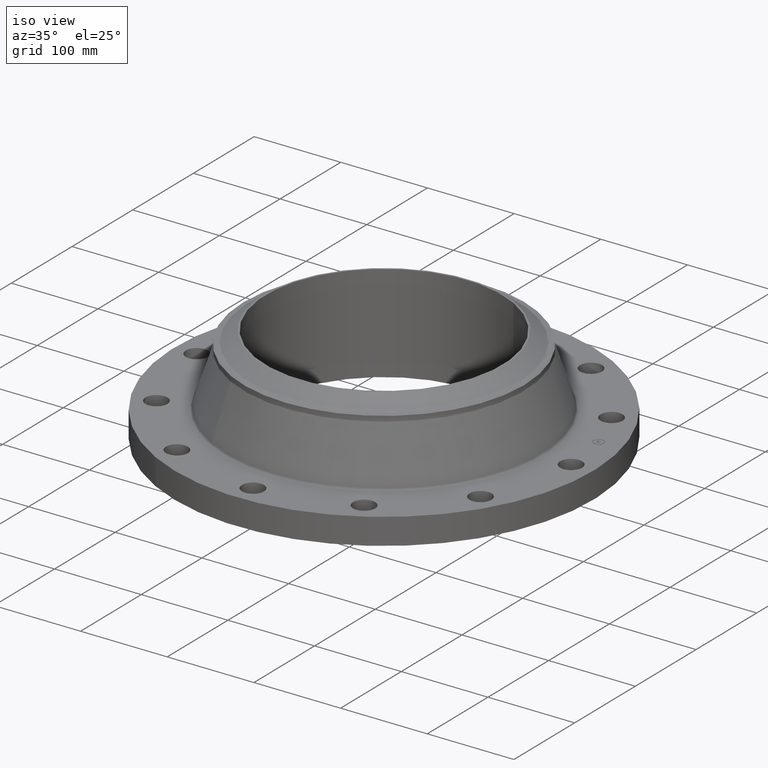
[diagram: clean part render]
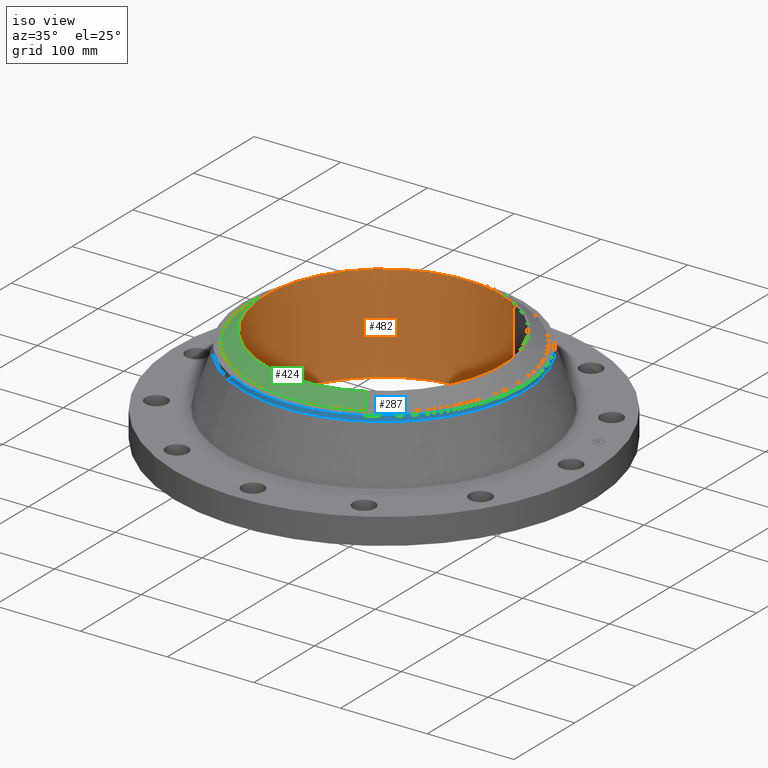
[diagram: same view with three faces highlighted in distinct colors, each labeled with its STEP entity id]
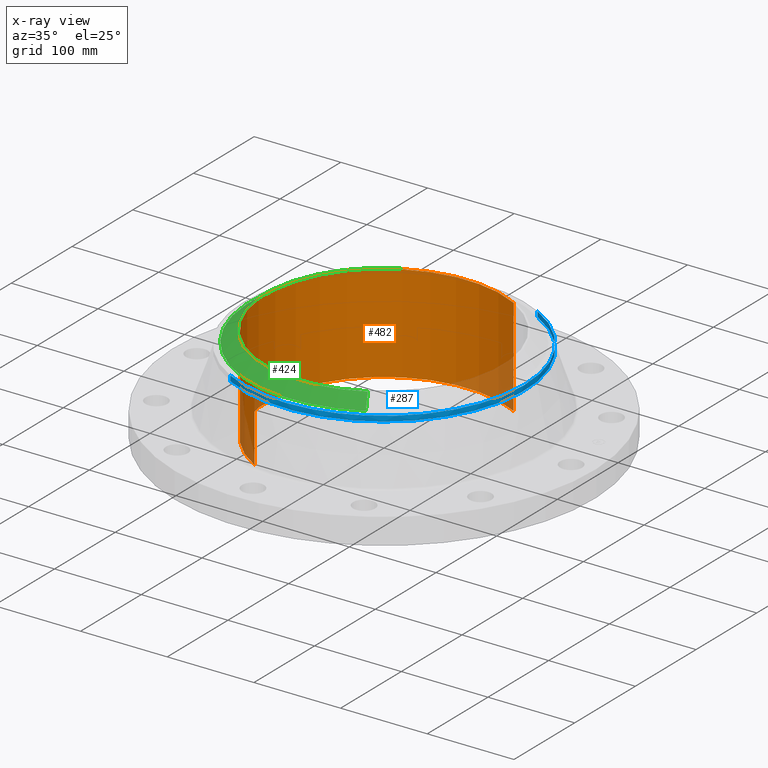
[diagram: x-ray of the same camera — body ghosted, the three highlighted faces saturated]
A machine part, iso view with three faces highlighted in distinct colors.
The next image is the same camera in x-ray (body ghosted, the three faces saturated) — at least one of them is partly hidden behind the body in this view.
Their STEP definitions:

[orange] entity #482 — the highlighted cylindrical surface (partial cylindrical patch) has radius 136.525 mm, axis along (0, 0, -1).
#396=AXIS2_PLACEMENT_3D('Circle Axis2P3D',#394,#395,$) ;
#455=AXIS2_PLACEMENT_3D('Cylinder Axis2P3D',#452,#453,#454) ;
#466=AXIS2_PLACEMENT_3D('Circle Axis2P3D',#464,#465,$) ;
#394=CARTESIAN_POINT('Axis2P3D Location',(0.,0.,4.44000000002)) ;
#398=CARTESIAN_POINT('Vertex',(-2.57691227001,-4.71700627018,4.44000000002)) ;
#400=CARTESIAN_POINT('Vertex',(2.57691227001,4.71700627018,4.44000000002)) ;
#452=CARTESIAN_POINT('Axis2P3D Location',(0.,0.,2.22000000001)) ;
#457=CARTESIAN_POINT('Line Origine',(-2.57691227001,-4.71700627018,2.22000000001)) ;
#461=CARTESIAN_POINT('Vertex',(-2.57691227001,-4.71700627018,-2.96525708624E-014)) ;
#464=CARTESIAN_POINT('Axis2P3D Location',(0.,0.,-2.96525708624E-014)) ;
#468=CARTESIAN_POINT('Vertex',(2.57691227001,4.71700627018,-2.96525708624E-014)) ;
#471=CARTESIAN_POINT('Line Origine',(2.57691227001,4.71700627018,2.22000000001)) ;
#395=DIRECTION('Axis2P3D Direction',(0.,0.,-0.0393700787402)) ;
#453=DIRECTION('Axis2P3D Direction',(0.,0.,-0.0393700787402)) ;
#454=DIRECTION('Axis2P3D XDirection',(0.0188750212049,0.0345504945626,0.)) ;
#458=DIRECTION('Vector Direction',(0.,0.,-0.0393700787402)) ;
#465=DIRECTION('Axis2P3D Direction',(0.,0.,-0.0393700787402)) ;
#472=DIRECTION('Vector Direction',(0.,0.,-0.0393700787402)) ;
#459=VECTOR('Line Direction',#458,0.0393700787402) ;
#473=VECTOR('Line Direction',#472,0.0393700787402) ;
#477=ORIENTED_EDGE('',*,*,#402,.F.) ;
#478=ORIENTED_EDGE('',*,*,#463,.T.) ;
#479=ORIENTED_EDGE('',*,*,#470,.T.) ;
#480=ORIENTED_EDGE('',*,*,#475,.F.) ;
#482=ADVANCED_FACE('PartBody',(#481),#456,.F.) ;
#397=CIRCLE('generated circle',#396,5.37500000002) ;
#467=CIRCLE('generated circle',#466,5.37500000002) ;
#456=CYLINDRICAL_SURFACE('generated cylinder',#455,5.37500000002) ;
#402=EDGE_CURVE('',#399,#401,#397,.T.) ;
#463=EDGE_CURVE('',#399,#462,#460,.T.) ;
#470=EDGE_CURVE('',#462,#469,#467,.T.) ;
#475=EDGE_CURVE('',#401,#469,#474,.T.) ;
#476=EDGE_LOOP('',(#477,#478,#479,#480)) ;
#481=FACE_OUTER_BOUND('',#476,.T.) ;
#460=LINE('Line',#457,#459) ;
#474=LINE('Line',#471,#473) ;
#399=VERTEX_POINT('',#398) ;
#401=VERTEX_POINT('',#400) ;
#462=VERTEX_POINT('',#461) ;
#469=VERTEX_POINT('',#468) ;

[blue] entity #287 — the highlighted cylindrical surface (partial cylindrical patch) has radius 161.925 mm, axis along (0, 0, -1).
#220=AXIS2_PLACEMENT_3D('Circle Axis2P3D',#218,#219,$) ;
#252=AXIS2_PLACEMENT_3D('Cylinder Axis2P3D',#249,#250,#251) ;
#270=AXIS2_PLACEMENT_3D('Circle Axis2P3D',#268,#269,$) ;
#277=AXIS2_PLACEMENT_3D('Circle Axis2P3D',#275,#276,$) ;
#215=CARTESIAN_POINT('Vertex',(3.05633780861,5.59458883207,3.64578537513)) ;
#218=CARTESIAN_POINT('Axis2P3D Location',(0.,0.,3.64578537513)) ;
#222=CARTESIAN_POINT('Vertex',(-3.05633780861,-5.59458883207,3.64578537513)) ;
#249=CARTESIAN_POINT('Axis2P3D Location',(0.,0.,2.22000000001)) ;
#254=CARTESIAN_POINT('Line Origine',(-3.05633780861,-5.59458883207,3.76389561135)) ;
#258=CARTESIAN_POINT('Vertex',(-3.05633780861,-5.59458883207,3.88200584757)) ;
#261=CARTESIAN_POINT('Line Origine',(3.05633780861,5.59458883207,3.76389561135)) ;
#265=CARTESIAN_POINT('Vertex',(3.05633780861,5.59458883207,3.88200584757)) ;
#268=CARTESIAN_POINT('Axis2P3D Location',(0.,0.,3.88200584757)) ;
#272=CARTESIAN_POINT('Vertex',(3.05633780861,-5.59458883207,3.88200584757)) ;
#275=CARTESIAN_POINT('Axis2P3D Location',(0.,0.,3.88200584757)) ;
#219=DIRECTION('Axis2P3D Direction',(0.,0.,-0.0393700787402)) ;
#250=DIRECTION('Axis2P3D Direction',(0.,0.,-0.0393700787402)) ;
#251=DIRECTION('Axis2P3D XDirection',(-0.0188750212049,-0.0345504945626,0.)) ;
#255=DIRECTION('Vector Direction',(0.,0.,-0.0393700787402)) ;
#262=DIRECTION('Vector Direction',(0.,0.,-0.0393700787402)) ;
#269=DIRECTION('Axis2P3D Direction',(0.,0.,-0.0393700787402)) ;
#276=DIRECTION('Axis2P3D Direction',(0.,0.,-0.0393700787402)) ;
#256=VECTOR('Line Direction',#255,0.0393700787402) ;
#263=VECTOR('Line Direction',#262,0.0393700787402) ;
#281=ORIENTED_EDGE('',*,*,#260,.F.) ;
#282=ORIENTED_EDGE('',*,*,#224,.F.) ;
#283=ORIENTED_EDGE('',*,*,#267,.T.) ;
#284=ORIENTED_EDGE('',*,*,#274,.F.) ;
#285=ORIENTED_EDGE('',*,*,#279,.T.) ;
#287=ADVANCED_FACE('PartBody',(#286),#253,.T.) ;
#221=CIRCLE('generated circle',#220,6.37500000003) ;
#271=CIRCLE('generated circle',#270,6.37500000003) ;
#278=CIRCLE('generated circle',#277,6.37500000003) ;
#253=CYLINDRICAL_SURFACE('generated cylinder',#252,6.37500000003) ;
#224=EDGE_CURVE('',#216,#223,#221,.T.) ;
#260=EDGE_CURVE('',#223,#259,#257,.F.) ;
#267=EDGE_CURVE('',#216,#266,#264,.F.) ;
#274=EDGE_CURVE('',#273,#266,#271,.F.) ;
#279=EDGE_CURVE('',#273,#259,#278,.T.) ;
#280=EDGE_LOOP('',(#281,#282,#283,#284,#285)) ;
#286=FACE_OUTER_BOUND('',#280,.T.) ;
#257=LINE('Line',#254,#256) ;
#264=LINE('Line',#261,#263) ;
#216=VERTEX_POINT('',#215) ;
#223=VERTEX_POINT('',#222) ;
#259=VERTEX_POINT('',#258) ;
#266=VERTEX_POINT('',#265) ;
#273=VERTEX_POINT('',#272) ;

[green] entity #424 — the highlighted conical surface has half-angle 52.5 deg.
#343=AXIS2_PLACEMENT_3D('Cone Axis2P3D',#340,#341,#342) ;
#387=AXIS2_PLACEMENT_3D('Circle Axis2P3D',#385,#386,$) ;
#415=AXIS2_PLACEMENT_3D('Circle Axis2P3D',#413,#414,$) ;
#340=CARTESIAN_POINT('Axis2P3D Location',(0.,0.,4.44000000002)) ;
#349=CARTESIAN_POINT('Vertex',(2.61466231242,-4.7861072593,4.44000000002)) ;
#351=CARTESIAN_POINT('Vertex',(-2.61466231242,4.7861072593,4.44000000002)) ;
#354=CARTESIAN_POINT('Line Origine',(2.76960361497,-5.06972541121,4.19201437258)) ;
#358=CARTESIAN_POINT('Vertex',(2.92454491752,-5.35334356311,3.94402874515)) ;
#365=CARTESIAN_POINT('Vertex',(-2.92454491752,5.35334356311,3.94402874515)) ;
#368=CARTESIAN_POINT('Line Origine',(-2.76960361497,5.06972541121,4.19201437258)) ;
#385=CARTESIAN_POINT('Axis2P3D Location',(0.,0.,4.44000000002)) ;
#413=CARTESIAN_POINT('Axis2P3D Location',(0.,0.,3.94402874515)) ;
#341=DIRECTION('Axis2P3D Direction',(-0.,-0.,-0.0393700787402)) ;
#342=DIRECTION('Axis2P3D XDirection',(0.0188750212049,-0.0345504945626,0.)) ;
#355=DIRECTION('Vector Direction',(0.014974561121,-0.02741075027,-0.023966985394)) ;
#369=DIRECTION('Vector Direction',(-0.014974561121,0.02741075027,-0.023966985394)) ;
#386=DIRECTION('Axis2P3D Direction',(0.,0.,-0.0393700787402)) ;
#414=DIRECTION('Axis2P3D Direction',(0.,0.,-0.0393700787402)) ;
#356=VECTOR('Line Direction',#355,0.0393700787402) ;
#370=VECTOR('Line Direction',#369,0.0393700787402) ;
#419=ORIENTED_EDGE('',*,*,#389,.F.) ;
#420=ORIENTED_EDGE('',*,*,#372,.T.) ;
#421=ORIENTED_EDGE('',*,*,#417,.T.) ;
#422=ORIENTED_EDGE('',*,*,#360,.F.) ;
#424=ADVANCED_FACE('PartBody',(#423),#344,.T.) ;
#388=CIRCLE('generated circle',#387,5.4537401575) ;
#416=CIRCLE('generated circle',#415,6.10010248105) ;
#344=CONICAL_SURFACE('Cone',#343,5.4537401575,0.916297857297) ;
#360=EDGE_CURVE('',#350,#359,#357,.T.) ;
#372=EDGE_CURVE('',#352,#366,#371,.T.) ;
#389=EDGE_CURVE('',#352,#350,#388,.F.) ;
#417=EDGE_CURVE('',#366,#359,#416,.F.) ;
#418=EDGE_LOOP('',(#419,#420,#421,#422)) ;
#423=FACE_OUTER_BOUND('',#418,.T.) ;
#357=LINE('Line',#354,#356) ;
#371=LINE('Line',#368,#370) ;
#350=VERTEX_POINT('',#349) ;
#352=VERTEX_POINT('',#351) ;
#359=VERTEX_POINT('',#358) ;
#366=VERTEX_POINT('',#365) ;